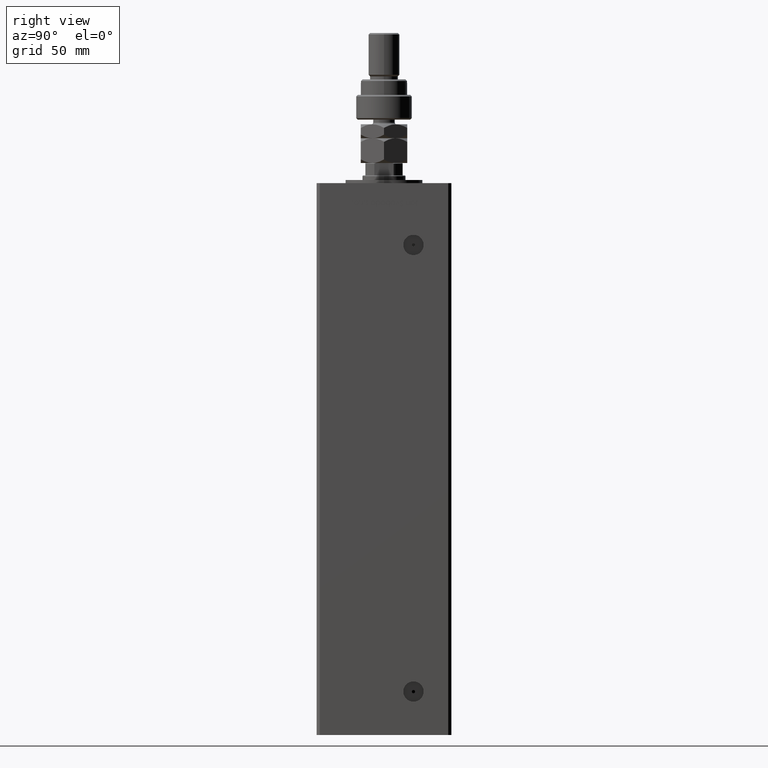
[diagram: clean part render]
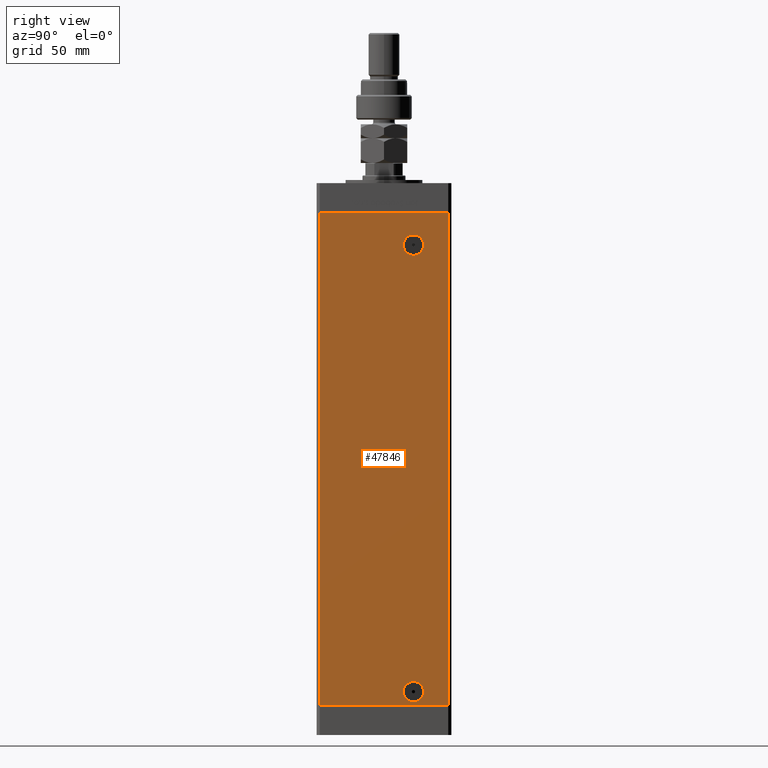
[diagram: same view with one face highlighted and labeled with its STEP entity id]
A machine part, right view. The second image highlights one B-rep face of the part: STEP entity #47846.
In plain terms, the highlighted planar face has unit normal (1, -0, 0).
Its self-contained STEP definition (entity closure, byte-faithful):
#506 = DIRECTION ( 'NONE',  ( 3.344045254895050480E-16, 1.000000000000000000, 0.000000000000000000 ) ) ;
#518 = AXIS2_PLACEMENT_3D ( 'NONE', #21919, #38930, #32864 ) ;
#2253 = AXIS2_PLACEMENT_3D ( 'NONE', #29425, #17185, #506 ) ;
#4061 = ORIENTED_EDGE ( 'NONE', *, *, #24141, .F. ) ;
#5623 = LINE ( 'NONE', #18403, #21586 ) ;
#5999 = DIRECTION ( 'NONE',  ( 1.000000000000000000, -2.275047181608927644E-16, 0.000000000000000000 ) ) ;
#7558 = VERTEX_POINT ( 'NONE', #39610 ) ;
#9206 = EDGE_CURVE ( 'NONE', #34458, #37986, #11649, .T. ) ;
#9257 = ORIENTED_EDGE ( 'NONE', *, *, #39174, .F. ) ;
#10550 = CARTESIAN_POINT ( 'NONE',  ( 50.00000000000001421, 41.49999999999999289, 318.5000000000000000 ) ) ;
#11562 = CARTESIAN_POINT ( 'NONE',  ( 50.00000000000000711, 12.41999999999994841, 297.5000000000000000 ) ) ;
#11649 = LINE ( 'NONE', #10550, #41212 ) ;
#13740 = CARTESIAN_POINT ( 'NONE',  ( 50.00000000000000711, 12.41999999999999993, 9.000000000000000000 ) ) ;
#14027 = ORIENTED_EDGE ( 'NONE', *, *, #48676, .F. ) ;
#16968 = EDGE_LOOP ( 'NONE', ( #44074, #53189, #34173, #27298 ) ) ;
#17185 = DIRECTION ( 'NONE',  ( 1.000000000000000000, -3.344045254895050480E-16, 0.000000000000000000 ) ) ;
#17763 = EDGE_CURVE ( 'NONE', #20123, #33672, #32195, .T. ) ;
#17983 = DIRECTION ( 'NONE',  ( -0.000000000000000000, -0.000000000000000000, -1.000000000000000000 ) ) ;
#18403 = CARTESIAN_POINT ( 'NONE',  ( 49.99999999999998579, -41.49999999999999289, 318.5000000000000000 ) ) ;
#19699 = DIRECTION ( 'NONE',  ( -3.344045254895050973E-16, -1.000000000000000000, 0.000000000000000000 ) ) ;
#20123 = VERTEX_POINT ( 'NONE', #49575 ) ;
#20877 = VECTOR ( 'NONE', #32483, 1000.000000000000000 ) ;
#21373 = EDGE_LOOP ( 'NONE', ( #4061, #53544 ) ) ;
#21586 = VECTOR ( 'NONE', #23101, 1000.000000000000000 ) ;
#21919 = CARTESIAN_POINT ( 'NONE',  ( 50.00000000000000711, 19.00000000000000000, 9.000000000000000000 ) ) ;
#23101 = DIRECTION ( 'NONE',  ( -0.000000000000000000, -0.000000000000000000, -1.000000000000000000 ) ) ;
#23376 = CARTESIAN_POINT ( 'NONE',  ( 50.00000000000000711, 18.99999999999999289, 297.5000000000000000 ) ) ;
#24141 = EDGE_CURVE ( 'NONE', #35229, #47115, #55049, .T. ) ;
#24491 = DIRECTION ( 'NONE',  ( 0.000000000000000000, 1.000000000000000000, 0.000000000000000000 ) ) ;
#24692 = FACE_BOUND ( 'NONE', #25259, .T. ) ;
#25244 = AXIS2_PLACEMENT_3D ( 'NONE', #32125, #5999, #53011 ) ;
#25258 = FACE_BOUND ( 'NONE', #21373, .T. ) ;
#25259 = EDGE_LOOP ( 'NONE', ( #9257, #14027 ) ) ;
#25795 = FACE_OUTER_BOUND ( 'NONE', #16968, .T. ) ;
#27029 = CIRCLE ( 'NONE', #25244, 6.579999999999999183 ) ;
#27298 = ORIENTED_EDGE ( 'NONE', *, *, #36300, .T. ) ;
#27399 = EDGE_CURVE ( 'NONE', #34458, #20123, #39168, .T. ) ;
#28485 = AXIS2_PLACEMENT_3D ( 'NONE', #54416, #32459, #32733 ) ;
#29425 = CARTESIAN_POINT ( 'NONE',  ( 50.00000000000001421, 41.49999999999999289, 318.5000000000000000 ) ) ;
#31015 = EDGE_CURVE ( 'NONE', #47115, #35229, #35626, .T. ) ;
#32125 = CARTESIAN_POINT ( 'NONE',  ( 50.00000000000000711, 19.00000000000000000, 9.000000000000000000 ) ) ;
#32195 = LINE ( 'NONE', #53620, #20877 ) ;
#32459 = DIRECTION ( 'NONE',  ( 1.000000000000000000, -2.275047181608927644E-16, 0.000000000000000000 ) ) ;
#32483 = DIRECTION ( 'NONE',  ( -3.344045254895050973E-16, -1.000000000000000000, 0.000000000000000000 ) ) ;
#32733 = DIRECTION ( 'NONE',  ( 0.000000000000000000, 1.000000000000000000, 0.000000000000000000 ) ) ;
#32864 = DIRECTION ( 'NONE',  ( 0.000000000000000000, 1.000000000000000000, 0.000000000000000000 ) ) ;
#33672 = VERTEX_POINT ( 'NONE', #49635 ) ;
#34173 = ORIENTED_EDGE ( 'NONE', *, *, #9206, .T. ) ;
#34458 = VERTEX_POINT ( 'NONE', #44654 ) ;
#35229 = VERTEX_POINT ( 'NONE', #41732 ) ;
#35626 = CIRCLE ( 'NONE', #28485, 6.580000000000044480 ) ;
#36300 = EDGE_CURVE ( 'NONE', #37986, #33672, #5623, .T. ) ;
#37986 = VERTEX_POINT ( 'NONE', #39327 ) ;
#38191 = AXIS2_PLACEMENT_3D ( 'NONE', #23376, #40405, #24491 ) ;
#38930 = DIRECTION ( 'NONE',  ( 1.000000000000000000, -2.275047181608927644E-16, 0.000000000000000000 ) ) ;
#39168 = LINE ( 'NONE', #47507, #46159 ) ;
#39174 = EDGE_CURVE ( 'NONE', #7558, #49946, #27029, .T. ) ;
#39327 = CARTESIAN_POINT ( 'NONE',  ( 49.99999999999998579, -41.49999999999999289, 318.5000000000000000 ) ) ;
#39610 = CARTESIAN_POINT ( 'NONE',  ( 50.00000000000000711, 25.57999999999999829, 9.000000000000000000 ) ) ;
#40405 = DIRECTION ( 'NONE',  ( 1.000000000000000000, -2.275047181608927644E-16, 0.000000000000000000 ) ) ;
#40529 = CIRCLE ( 'NONE', #518, 6.579999999999999183 ) ;
#41212 = VECTOR ( 'NONE', #19699, 1000.000000000000000 ) ;
#41732 = CARTESIAN_POINT ( 'NONE',  ( 50.00000000000000711, 25.58000000000003737, 297.5000000000000000 ) ) ;
#44074 = ORIENTED_EDGE ( 'NONE', *, *, #17763, .F. ) ;
#44654 = CARTESIAN_POINT ( 'NONE',  ( 50.00000000000001421, 41.49999999999999289, 318.5000000000000000 ) ) ;
#46159 = VECTOR ( 'NONE', #17983, 1000.000000000000000 ) ;
#47115 = VERTEX_POINT ( 'NONE', #11562 ) ;
#47507 = CARTESIAN_POINT ( 'NONE',  ( 50.00000000000001421, 41.49999999999999289, 318.5000000000000000 ) ) ;
#47846 = ADVANCED_FACE ( 'NONE', ( #25258, #24692, #25795 ), #51419, .T. ) ;
#48676 = EDGE_CURVE ( 'NONE', #49946, #7558, #40529, .T. ) ;
#49575 = CARTESIAN_POINT ( 'NONE',  ( 50.00000000000001421, 41.49999999999999289, 0.000000000000000000 ) ) ;
#49635 = CARTESIAN_POINT ( 'NONE',  ( 49.99999999999998579, -41.49999999999999289, 0.000000000000000000 ) ) ;
#49946 = VERTEX_POINT ( 'NONE', #13740 ) ;
#51419 = PLANE ( 'NONE',  #2253 ) ;
#53011 = DIRECTION ( 'NONE',  ( 0.000000000000000000, 1.000000000000000000, 0.000000000000000000 ) ) ;
#53189 = ORIENTED_EDGE ( 'NONE', *, *, #27399, .F. ) ;
#53544 = ORIENTED_EDGE ( 'NONE', *, *, #31015, .F. ) ;
#53620 = CARTESIAN_POINT ( 'NONE',  ( 50.00000000000001421, 41.49999999999999289, 0.000000000000000000 ) ) ;
#54416 = CARTESIAN_POINT ( 'NONE',  ( 50.00000000000000711, 18.99999999999999289, 297.5000000000000000 ) ) ;
#55049 = CIRCLE ( 'NONE', #38191, 6.580000000000044480 ) ;